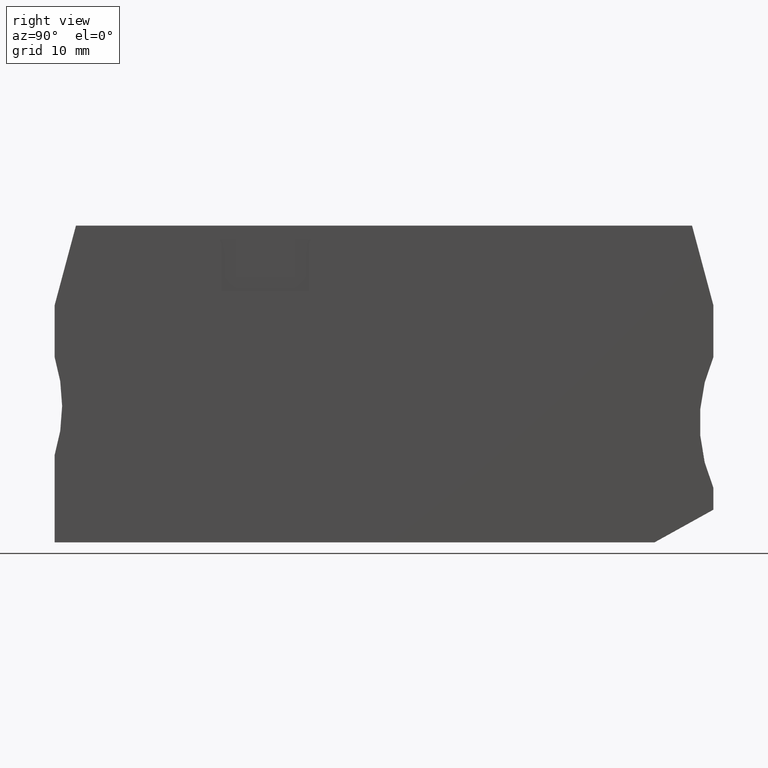
[diagram: clean part render]
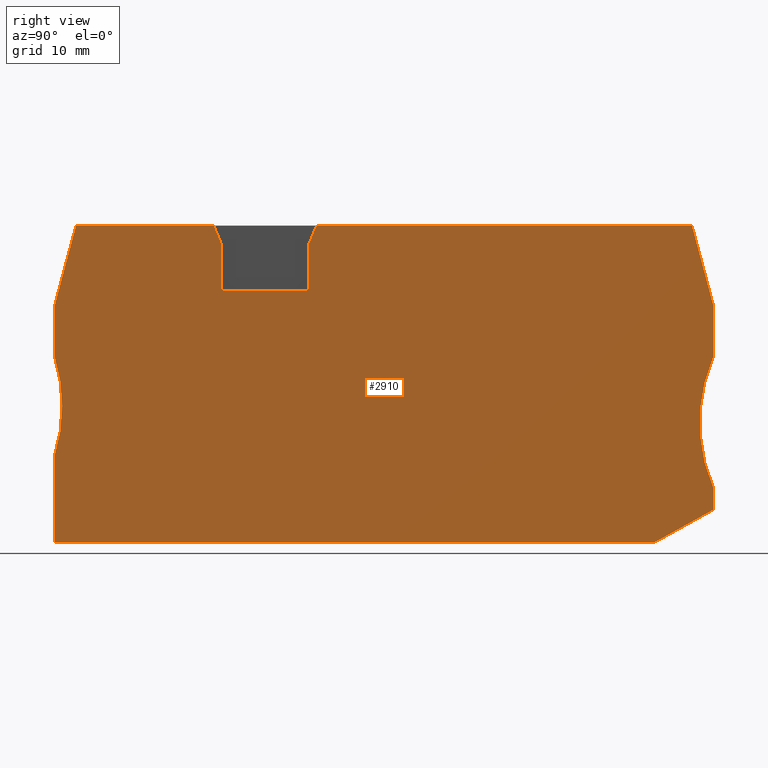
[diagram: same view with one face highlighted and labeled with its STEP entity id]
A machine part, right view. The second image highlights one B-rep face of the part: STEP entity #2910.
In plain terms, the highlighted planar face has unit normal (-1, 0, 0).
Its self-contained STEP definition (entity closure, byte-faithful):
#1500=CARTESIAN_POINT('',(35.840579,-37.08196,55.37));
#1510=DIRECTION('',(0.,0.,-1.));
#1520=DIRECTION('',(-1.,0.,0.));
#1530=AXIS2_PLACEMENT_3D('',#1500,#1510,#1520);
#1540=PLANE('',#1530);
#1550=CARTESIAN_POINT('',(-6.52682329685673,-12.1300507694245,55.37));
#1560=DIRECTION('',(-0.38930399708582,0.921109330021689,0.));
#1570=VECTOR('',#1560,1.);
#1580=LINE('',#1550,#1570);
#1590=CARTESIAN_POINT('',(-7.06783277832054,-10.8500000000082,55.37));
#1600=VERTEX_POINT('',#1590);
#1610=CARTESIAN_POINT('',(-7.78633249760117,-9.14999999999962,55.37));
#1620=VERTEX_POINT('',#1610);
#1630=EDGE_CURVE('',#1600,#1620,#1580,.T.);
#1640=ORIENTED_EDGE('',*,*,#1630,.T.);
#1650=CARTESIAN_POINT('',(-7.06783277832105,-12.1300507694245,55.37));
#1660=DIRECTION('',(3.99736267046952E-13,1.,0.));
#1670=VECTOR('',#1660,1.);
#1680=LINE('',#1650,#1670);
#1690=CARTESIAN_POINT('',(-7.06783277832226,-15.1500000000049,55.37));
#1700=VERTEX_POINT('',#1690);
#1710=EDGE_CURVE('',#1700,#1600,#1680,.T.);
#1720=ORIENTED_EDGE('',*,*,#1710,.T.);
#1730=CARTESIAN_POINT('',(11.4461541156319,-15.1500000000125,55.37));
#1740=DIRECTION('',(-1.,4.08951118151342E-13,0.));
#1750=VECTOR('',#1740,1.);
#1760=LINE('',#1730,#1750);
#1770=CARTESIAN_POINT('',(0.932167221677473,-15.1500000000082,55.37));
#1780=VERTEX_POINT('',#1770);
#1790=EDGE_CURVE('',#1780,#1700,#1760,.T.);
#1800=ORIENTED_EDGE('',*,*,#1790,.T.);
#1810=CARTESIAN_POINT('',(0.932167221678709,-12.1300507694245,55.37));
#1820=DIRECTION('',(-4.09450718512422E-13,-1.,0.));
#1830=VECTOR('',#1820,1.);
#1840=LINE('',#1810,#1830);
#1850=CARTESIAN_POINT('',(0.932167221679233,-10.8499999999646,55.37));
#1860=VERTEX_POINT('',#1850);
#1870=EDGE_CURVE('',#1860,#1780,#1840,.T.);
#1880=ORIENTED_EDGE('',*,*,#1870,.T.);
#1890=CARTESIAN_POINT('',(0.391157740173632,-12.1300507694245,55.37));
#1900=DIRECTION('',(-0.389303997098565,-0.921109330016302,0.));
#1910=VECTOR('',#1900,1.);
#1920=LINE('',#1890,#1910);
#1930=CARTESIAN_POINT('',(1.65066694096876,-9.14999999999962,55.37));
#1940=VERTEX_POINT('',#1930);
#1950=EDGE_CURVE('',#1940,#1860,#1920,.T.);
#1960=ORIENTED_EDGE('',*,*,#1950,.T.);
#1970=CARTESIAN_POINT('',(11.4461541156319,-9.14999999999962,55.37));
#1980=DIRECTION('',(-1.,0.,0.));
#1990=VECTOR('',#1980,1.);
#2000=LINE('',#1970,#1990);
#2010=CARTESIAN_POINT('',(36.0719729923328,-9.14999999999962,55.37));
#2020=VERTEX_POINT('',#2010);
#2030=EDGE_CURVE('',#2020,#1940,#2000,.T.);
#2040=ORIENTED_EDGE('',*,*,#2030,.T.);
#2050=CARTESIAN_POINT('',(36.8704751894059,-12.1300507694245,55.37));
#2060=DIRECTION('',(0.258819045103111,-0.96592582628891,0.));
#2070=VECTOR('',#2060,1.);
#2080=LINE('',#2050,#2070);
#2090=CARTESIAN_POINT('',(38.0321672216792,-16.4655444566058,55.37));
#2100=VERTEX_POINT('',#2090);
#2110=EDGE_CURVE('',#2020,#2100,#2080,.T.);
#2120=ORIENTED_EDGE('',*,*,#2110,.F.);
#2130=CARTESIAN_POINT('',(38.0321672216792,-12.1300507694245,55.37));
#2140=DIRECTION('',(0.,-1.,0.));
#2150=VECTOR('',#2140,1.);
#2160=LINE('',#2130,#2150);
#2170=CARTESIAN_POINT('',(38.0321672216792,-21.2000000000007,55.37));
#2180=VERTEX_POINT('',#2170);
#2190=EDGE_CURVE('',#2100,#2180,#2160,.T.);
#2200=ORIENTED_EDGE('',*,*,#2190,.F.);
#2210=CARTESIAN_POINT('',(51.7798943065467,-27.2000000000007,55.37));
#2220=DIRECTION('',(0.,0.,1.));
#2230=DIRECTION('',(1.,0.,0.));
#2240=AXIS2_PLACEMENT_3D('',#2210,#2220,#2230);
#2250=CIRCLE('',#2240,15.);
#2260=CARTESIAN_POINT('',(38.0321672216792,-33.2000000000007,55.37));
#2270=VERTEX_POINT('',#2260);
#2280=EDGE_CURVE('',#2180,#2270,#2250,.T.);
#2290=ORIENTED_EDGE('',*,*,#2280,.F.);
#2300=CARTESIAN_POINT('',(38.0321672216792,-12.1300507694245,55.37));
#2310=DIRECTION('',(0.,-1.,0.));
#2320=VECTOR('',#2310,1.);
#2330=LINE('',#2300,#2320);
#2340=CARTESIAN_POINT('',(38.0321672216792,-35.199999999998,55.37));
#2350=VERTEX_POINT('',#2340);
#2360=EDGE_CURVE('',#2270,#2350,#2330,.T.);
#2370=ORIENTED_EDGE('',*,*,#2360,.F.);
#2380=CARTESIAN_POINT('',(11.4461541156319,-49.9500920346854,55.37));
#2390=DIRECTION('',(-0.874435210897321,-0.485142311021165,0.));
#2400=VECTOR('',#2390,1.);
#2410=LINE('',#2380,#2400);
#2420=CARTESIAN_POINT('',(32.6248762617011,-38.1999999999931,55.37));
#2430=VERTEX_POINT('',#2420);
#2440=EDGE_CURVE('',#2350,#2430,#2410,.T.);
#2450=ORIENTED_EDGE('',*,*,#2440,.F.);
#2460=CARTESIAN_POINT('',(11.4461541156319,-38.1999999999931,55.37));
#2470=DIRECTION('',(-1.,0.,0.));
#2480=VECTOR('',#2470,1.);
#2490=LINE('',#2460,#2480);
#2500=CARTESIAN_POINT('',(-22.367832778321,-38.1999999999931,55.37));
#2510=VERTEX_POINT('',#2500);
#2520=EDGE_CURVE('',#2430,#2510,#2490,.T.);
#2530=ORIENTED_EDGE('',*,*,#2520,.F.);
#2540=CARTESIAN_POINT('',(-22.367832778321,-12.1300507694245,55.37));
#2550=DIRECTION('',(0.,1.,0.));
#2560=VECTOR('',#2550,1.);
#2570=LINE('',#2540,#2560);
#2580=CARTESIAN_POINT('',(-22.367832778321,-30.2000000000007,55.37));
#2590=VERTEX_POINT('',#2580);
#2600=EDGE_CURVE('',#2510,#2590,#2570,.T.);
#2610=ORIENTED_EDGE('',*,*,#2600,.F.);
#2620=CARTESIAN_POINT('',(-36.6769207995752,-25.7000000000007,55.37));
#2630=DIRECTION('',(0.,0.,1.));
#2640=DIRECTION('',(1.,0.,0.));
#2650=AXIS2_PLACEMENT_3D('',#2620,#2630,#2640);
#2660=CIRCLE('',#2650,15.);
#2670=CARTESIAN_POINT('',(-22.367832778321,-21.2000000000008,55.37));
#2680=VERTEX_POINT('',#2670);
#2690=EDGE_CURVE('',#2590,#2680,#2660,.T.);
#2700=ORIENTED_EDGE('',*,*,#2690,.F.);
#2710=CARTESIAN_POINT('',(-22.367832778321,-12.1300507694245,55.37));
#2720=DIRECTION('',(0.,1.,0.));
#2730=VECTOR('',#2720,1.);
#2740=LINE('',#2710,#2730);
#2750=CARTESIAN_POINT('',(-22.367832778321,-16.4655444566073,55.37));
#2760=VERTEX_POINT('',#2750);
#2770=EDGE_CURVE('',#2680,#2760,#2740,.T.);
#2780=ORIENTED_EDGE('',*,*,#2770,.F.);
#2790=CARTESIAN_POINT('',(-21.2061407460473,-12.1300507694245,55.37));
#2800=DIRECTION('',(0.258819045103118,0.965925826288908,0.));
#2810=VECTOR('',#2800,1.);
#2820=LINE('',#2790,#2810);
#2830=CARTESIAN_POINT('',(-20.4076385489742,-9.14999999999962,55.37));
#2840=VERTEX_POINT('',#2830);
#2850=EDGE_CURVE('',#2760,#2840,#2820,.T.);
#2860=ORIENTED_EDGE('',*,*,#2850,.F.);
#2870=EDGE_CURVE('',#1620,#2840,#2000,.T.);
#2880=ORIENTED_EDGE('',*,*,#2870,.T.);
#2890=EDGE_LOOP('',(#2880,#2860,#2780,#2700,#2610,#2530,#2450,#2370,
#2290,#2200,#2120,#2040,#1960,#1880,#1800,#1720,#1640));
#2900=FACE_OUTER_BOUND('',#2890,.T.);
#2910=ADVANCED_FACE('',(#2900),#1540,.F.);